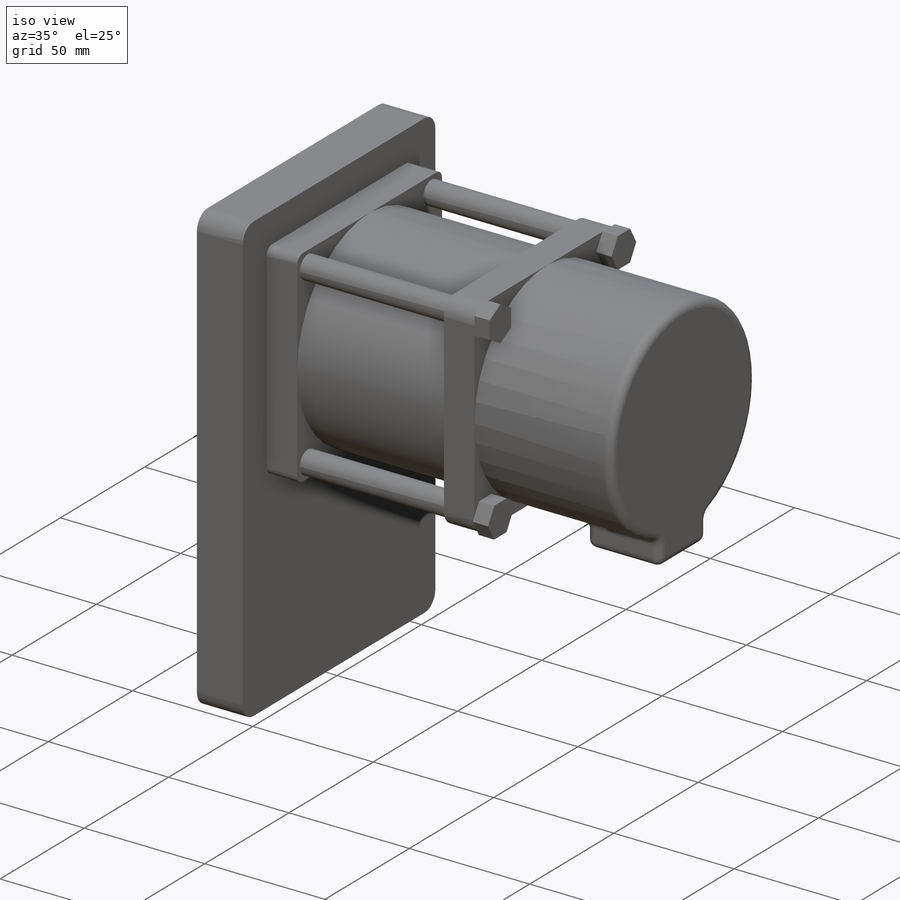
[diagram: iso view]
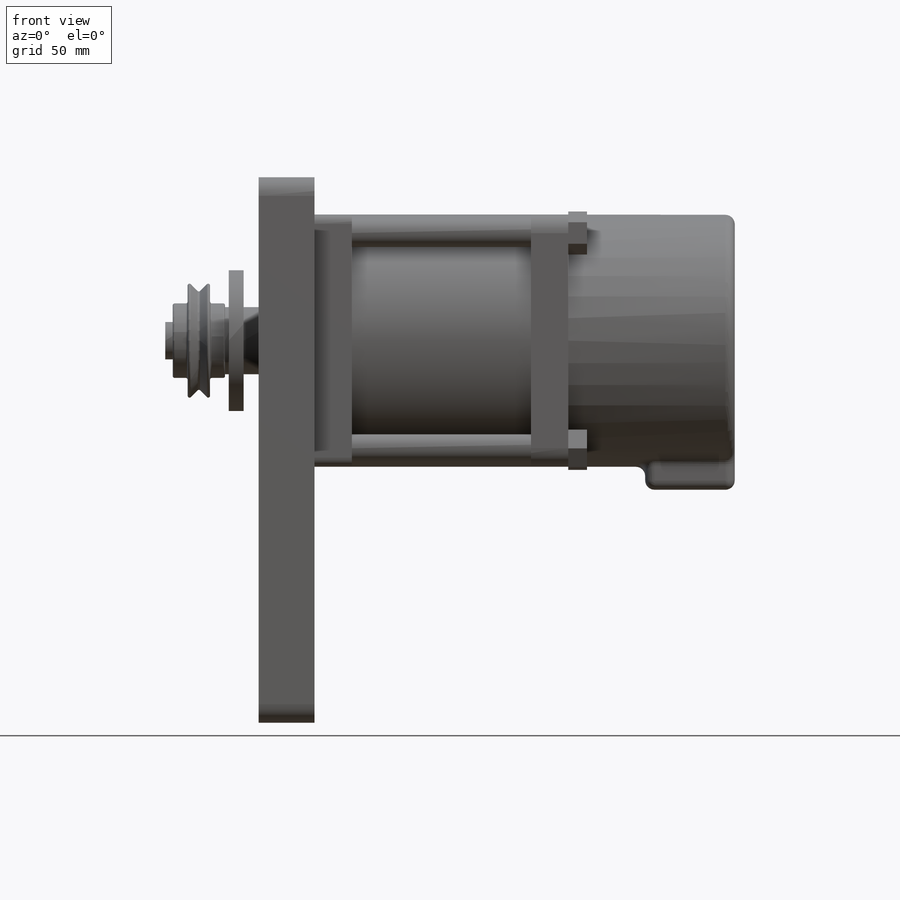
[diagram: front view]
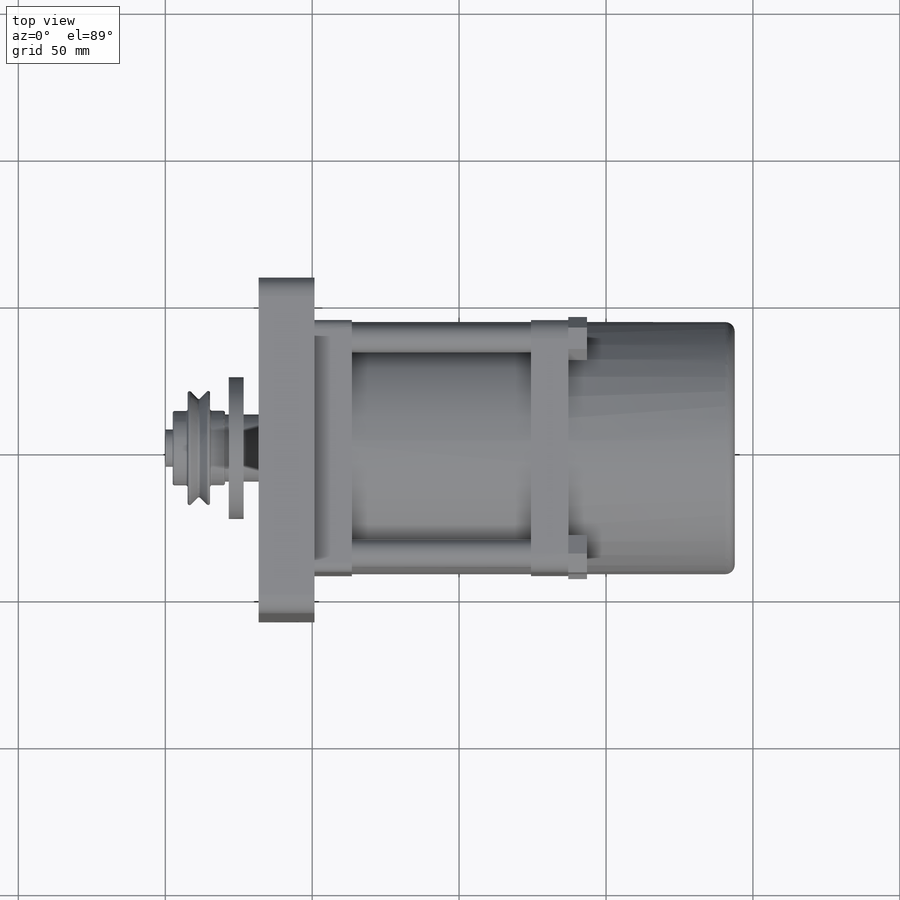
[diagram: top view]
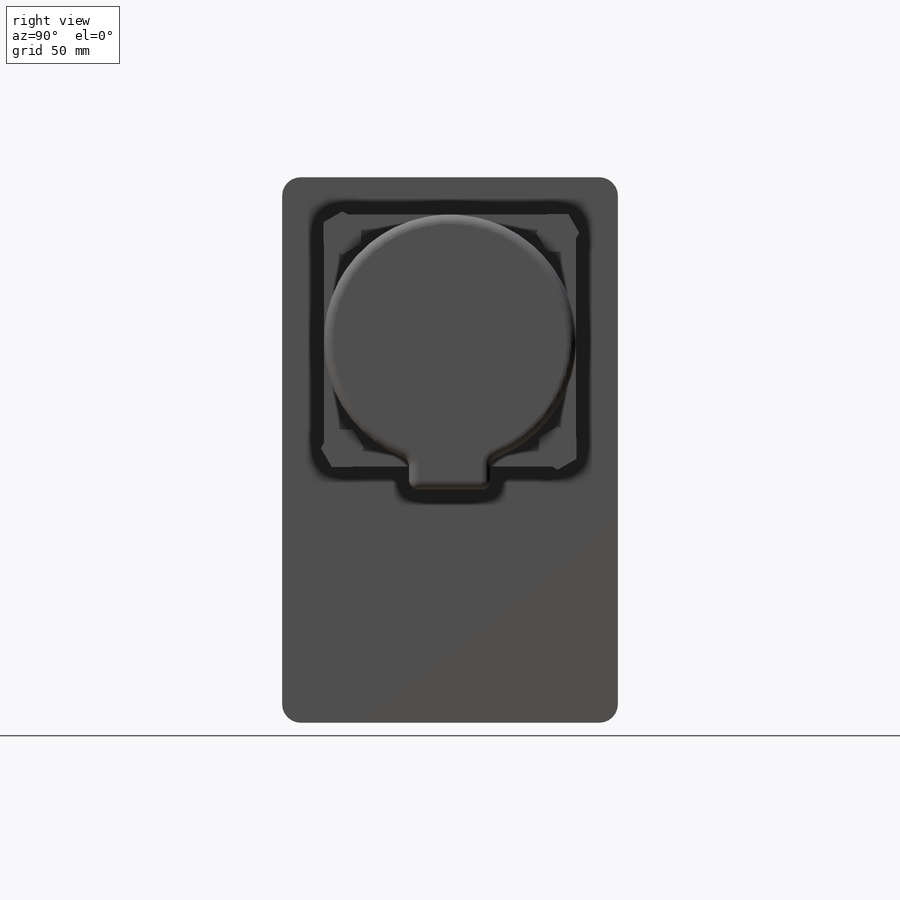
[diagram: right view]
SOLIDWORKS PART (.sldprt)
format: sldprt  version: not decoded by parser v0  size: 561,664 bytes
history: native  units: mm
features: sketch x12, extrude x9, fillet x6, plane x5, material x1, pattern_circular x1, cut_revolve x1 (+16 scaffold rows collapsed)
feature tree (51):
  scaffold x16  (default folders/planes/origin — collapsed)
  material  "Material <not specified>"
  sketch  "Sketch1"  dims[D1=85.852mm D2=38.481mm]
  plane  "Plane1"  Offset=50.8mm
  sketch  "Sketch2"  dims[D1=85.852mm]
  plane  "G"  Offset=193.802mm
  sketch  "Sketch4"  dims[D1=0.0mm]
  extrude  "Boss-Extrude1"  Depth=12.7mm
  sketch  "Sketch5"
  extrude  "Boss-Extrude2"  [1 undecoded]
  plane  "Plane3"  Offset=60.96mm
  sketch  "Sketch6"  dims[D1=0.0mm]
  extrude  "Boss-Extrude3"  Depth=12.7mm
  sketch  "Sketch7"  dims[D1=9.525mm]
  extrude  "Boss-Extrude4"  [1 undecoded]
  sketch  "Sketch8"  dims[D1=12.7mm]
  extrude  "Boss-Extrude5"  Depth=6.35mm
  pattern_circular  "CirPattern1"  Count=4 Angle=360deg
  sketch  "Sketch9"  dims[D1=27.94mm D2=10.16mm]
  extrude  "Boss-Extrude6"  Depth=30.48mm
  fillet  "Fillet2"  Radius=3.175mm
  fillet  "Fillet4"  Radius=3.175mm
  fillet  "Fillet5"  Radius=3.175mm
  sketch  "Sketch10"  dims[D1=12.7mm D2=2.54mm D3=6.35mm D4=7.62mm D5=7.62mm D6=5.08mm D7=5.08mm D8=1.27mm D9=5.08mm D10=12.7mm D11=5.08mm D12=5.08mm D13=76.2mm]
  cut_revolve  "Cut-Revolve3"  Angle=360deg
  fillet  "Fillet6"  Radius=0.635mm
  fillet  "Fillet7"  Radius=6.35mm
  plane  "F"  Offset=133.35mm
  plane  "Face"  Offset=88.9mm
  sketch  "Sketch11"  dims[D1=172.974mm]
  extrude  "plate"  [1 undecoded]
  sketch  "Sketch12"
  extrude  "Boss-Extrude8"  Depth=12.7mm
  sketch  "Sketch14"
  extrude  "Boss-Extrude9"  Depth=114.3mm
  fillet  "Fillet8"  Radius=6.35mm
decode coverage: 23 of 29 modeling features carry decoded parameters
note: 3 parameter values undecoded
summary: no parameter record found for 3 features
note: suppression state not decoded; provenance and decode notes live in map.json
